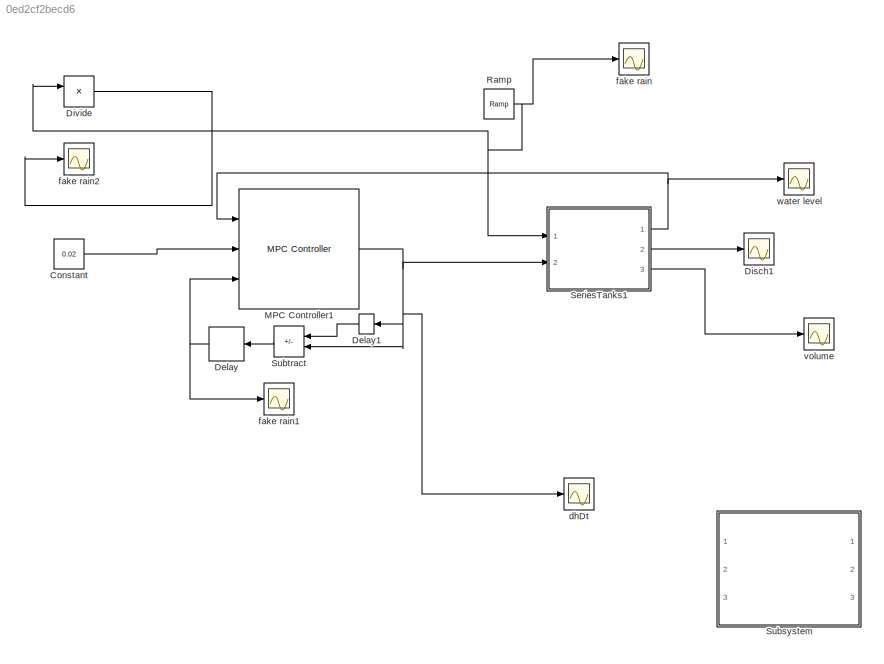
MODEL slx_0ed2cf2becd6
KIND model
CONFIG AbsTol = auto
CONFIG EnableMultiTasking = off
CONFIG FixedStep = auto
CONFIG MaxStep = auto
CONFIG MinStep = auto
CONFIG RelTol = 1e-3
CONFIG SampleTimeConstraint = Unconstrained
CONFIG Solver = VariableStepAuto
CONFIG SolverName = VariableStepAuto
CONFIG StartTime = 0.0
CONFIG StopTime = 100
BLOCK [Constant] Constant
  Value = 0.02
BLOCK [Delay] Delay
  DelayLength = 1
  InitialCondition = 0
  InputPortMap = u0
  Ports = [1, 1]
BLOCK [Delay] Delay1
  DelayLength = 1
  InitialCondition = 0
  InputPortMap = u0
  Ports = [1, 1]
BLOCK [Scope] Disch1
  Floating = off
  NumInputPorts = 1
  Ports = [1]
  ScopeSpecificationString = Simulink.scopes.TimeScopeBlockCfg('CurrentConfiguration', extmgr.ConfigurationSet(extmgr.Configuration('Core','General UI',true),extmgr.Configuration('Core','Source UI',true),extmgr.Configuration('Sources','WiredSimulink',true,'DataLoggingVariableName','ScopeData3'),extmgr.Configuration('Visuals','Time Domain',true,'SerializedDisplays',{struct('MinYLimReal','-22773506094858.67188','MaxYLimReal','2...<+1605ch>
BLOCK [Product] Divide
  Commented = on
  Inputs = */
  Ports = [2, 1]
BLOCK [Reference] MPC Controller1  REF=mpclib/MPC Controller  (lib defined in mdl_ae329e0e0455)
  Ports = [3, 1]
  SCDEnableBlockLinearizationSpecification = on
  SourceBlock = mpclib/MPC Controller
  SourceProductBaseCode = MP
  SourceType = MPC
BLOCK [Reference] Ramp  REF=simulink/Sources/Ramp
  Ports = [0, 1]
  SourceBlock = simulink/Sources/Ramp
  SourceProductBaseCode = SL
  SourceType = Ramp
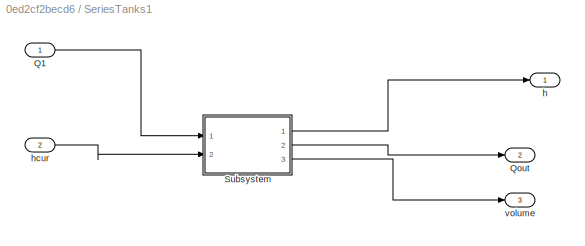
BLOCK [SubSystem] SeriesTanks1
  Ports = [2, 3]
  RequestExecContextInheritance = off
BLOCK [Inport] SeriesTanks1/Q1
BLOCK [Outport] SeriesTanks1/Qout
  Port = 2
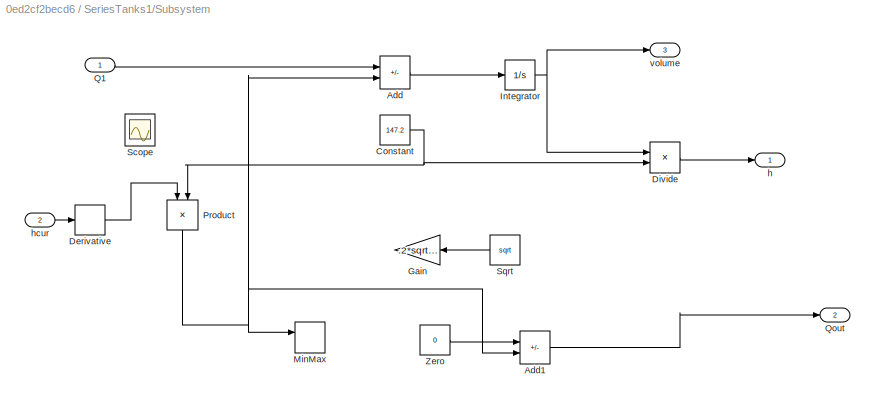
BLOCK [SubSystem] SeriesTanks1/Subsystem
  PermitHierarchicalResolution = None
  Ports = [2, 3]
  RequestExecContextInheritance = off
BLOCK [Sum] SeriesTanks1/Subsystem/Add
  IconShape = rectangular
  Inputs = +-
  Ports = [2, 1]
BLOCK [Sum] SeriesTanks1/Subsystem/Add1
  IconShape = rectangular
  Inputs = +-
  Ports = [2, 1]
BLOCK [Constant] SeriesTanks1/Subsystem/Constant
  Value = 147.2
BLOCK [Derivative] SeriesTanks1/Subsystem/Derivative
BLOCK [Product] SeriesTanks1/Subsystem/Divide
  Inputs = */
  Ports = [2, 1]
BLOCK [Gain] SeriesTanks1/Subsystem/Gain
  Gain = .2*sqrt(2)
BLOCK [Integrator] SeriesTanks1/Subsystem/Integrator
  LimitOutput = on
  LowerSaturationLimit = 0
  Ports = [1, 1]
  UpperSaturationLimit = 100
BLOCK [MinMax] SeriesTanks1/Subsystem/MinMax
  Commented = on
  Function = max
  Inputs = 2
  Ports = [2, 1]
BLOCK [Product] SeriesTanks1/Subsystem/Product
  NameLocation = left
  Ports = [2, 1]
BLOCK [Inport] SeriesTanks1/Subsystem/Q1
BLOCK [Outport] SeriesTanks1/Subsystem/Qout
  OutMax = 100
  OutMin = 0
  Port = 2
BLOCK [Scope] SeriesTanks1/Subsystem/Scope
  Floating = off
  NumInputPorts = 1
  Ports = [1]
  ScopeSpecificationString = Simulink.scopes.TimeScopeBlockCfg('CurrentConfiguration', extmgr.ConfigurationSet(extmgr.Configuration('Core','General UI',true),extmgr.Configuration('Core','Source UI',true),extmgr.Configuration('Sources','WiredSimulink',true,'DataLoggingVariableName','ScopeData3'),extmgr.Configuration('Visuals','Time Domain',true,'SerializedDisplays',{struct('MinYLimReal','-1.00000','MaxYLimReal','1.00000','YLab...<+1432ch>
BLOCK [Sqrt] SeriesTanks1/Subsystem/Sqrt
BLOCK [Constant] SeriesTanks1/Subsystem/Zero
  OutDataTypeStr = Inherit: Inherit via back propagation
  Value = 0
BLOCK [Outport] SeriesTanks1/Subsystem/h
  OutMin = 0
BLOCK [Inport] SeriesTanks1/Subsystem/hcur
  Port = 2
BLOCK [Outport] SeriesTanks1/Subsystem/volume
  OutMin = 0
  Port = 3
BLOCK [Outport] SeriesTanks1/h
BLOCK [Inport] SeriesTanks1/hcur
  Port = 2
BLOCK [Outport] SeriesTanks1/volume
  Port = 3
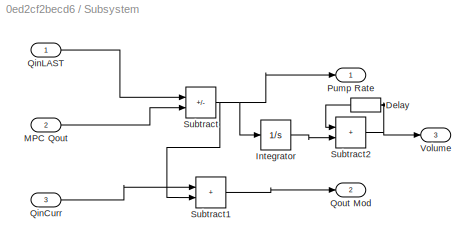
BLOCK [SubSystem] Subsystem
  Commented = on
  PortSchema = {"entries":[{"content":{"sides":[{"content":{"connectorIds":["In1","In2"]},"type":"ConnectorPlacement.EquallySpacedRectSide","uuid":"2e541fee-425f-42c5-8525-f22b933c6585"},{"content":{"connectorIds":["Out1","Out2","Out3"],"side":"RIGHT"},"type":"ConnectorPlacement.EquallySpacedRectSide","uuid":"dcba341a-88c3-4351-8c35-125a68807492"},{"content":{"connectorIds":["In3"],"side":"TOP"},"type":"Connecto...<+267ch>
  Ports = [3, 3]
  RequestExecContextInheritance = off
BLOCK [Delay] Subsystem/Delay
  DelayLength = 1
  InitialCondition = 0
  InputPortMap = u0
  Ports = [1, 1]
BLOCK [Integrator] Subsystem/Integrator
  Ports = [1, 1]
BLOCK [Inport] Subsystem/MPC Qout
  Port = 2
BLOCK [Outport] Subsystem/Pump Rate
  OutMin = 0
BLOCK [Inport] Subsystem/QinCurr
  Port = 3
BLOCK [Inport] Subsystem/QinLAST
BLOCK [Outport] Subsystem/Qout Mod
  OutMin = 0
  Port = 2
BLOCK [Sum] Subsystem/Subtract
  IconShape = rectangular
  Inputs = +-
  Ports = [2, 1]
BLOCK [Sum] Subsystem/Subtract1
  IconShape = rectangular
  Ports = [2, 1]
BLOCK [Sum] Subsystem/Subtract2
  IconShape = rectangular
  Ports = [2, 1]
BLOCK [Outport] Subsystem/Volume
  OutMin = 0
  Port = 3
BLOCK [Sum] Subtract
  IconShape = rectangular
  Inputs = +-
  Ports = [2, 1]
BLOCK [Scope] dhDt
  Floating = off
  NumInputPorts = 1
  Ports = [1]
  ScopeSpecificationString = Simulink.scopes.TimeScopeBlockCfg('CurrentConfiguration', extmgr.ConfigurationSet(extmgr.Configuration('Core','General UI',true),extmgr.Configuration('Core','Source UI',true),extmgr.Configuration('Sources','WiredSimulink',true,'DataLoggingVariableName','ScopeData5'),extmgr.Configuration('Visuals','Time Domain',true,'SerializedDisplays',{struct('MinYLimReal','-0.05107','MaxYLimReal','0.45961','YLab...<+1464ch>
BLOCK [Scope] fake rain
  Floating = off
  NumInputPorts = 1
  Ports = [1]
  ScopeSpecificationString = Simulink.scopes.TimeScopeBlockCfg('CurrentConfiguration', extmgr.ConfigurationSet(extmgr.Configuration('Core','General UI',true),extmgr.Configuration('Core','Source UI',true),extmgr.Configuration('Sources','WiredSimulink',true,'DataLoggingVariableName','ScopeData1'),extmgr.Configuration('Visuals','Time Domain',true,'SerializedDisplays',{struct('MinYLimReal','-2.375','MaxYLimReal','21.375','YLabelR...<+1410ch>
BLOCK [Scope] fake rain1
  Floating = off
  NumInputPorts = 1
  Ports = [1]
  ScopeSpecificationString = Simulink.scopes.TimeScopeBlockCfg('CurrentConfiguration', extmgr.ConfigurationSet(extmgr.Configuration('Core','General UI',true),extmgr.Configuration('Core','Source UI',true),extmgr.Configuration('Sources','WiredSimulink',true,'DataLoggingVariableName','ScopeData4'),extmgr.Configuration('Visuals','Time Domain',true,'SerializedDisplays',{struct('MinYLimReal','-0.23463','MaxYLimReal','0.15834','YLab...<+1392ch>
BLOCK [Scope] fake rain2
  Commented = on
  Floating = off
  NumInputPorts = 1
  Ports = [1]
  ScopeSpecificationString = Simulink.scopes.TimeScopeBlockCfg('CurrentConfiguration', extmgr.ConfigurationSet(extmgr.Configuration('Core','General UI',true),extmgr.Configuration('Core','Source UI',true),extmgr.Configuration('Sources','WiredSimulink',true,'DataLoggingVariableName','ScopeData5'),extmgr.Configuration('Visuals','Time Domain',true,'SerializedDisplays',{struct('MinYLimReal','-0.01613','MaxYLimReal','0.14521','YLab...<+1394ch>
BLOCK [Scope] volume
  Floating = off
  NumInputPorts = 1
  Ports = [1]
  ScopeSpecificationString = Simulink.scopes.TimeScopeBlockCfg('CurrentConfiguration', extmgr.ConfigurationSet(extmgr.Configuration('Core','General UI',true),extmgr.Configuration('Core','Source UI',true),extmgr.Configuration('Sources','WiredSimulink',true,'DataLoggingVariableName','ScopeData2'),extmgr.Configuration('Visuals','Time Domain',true,'SerializedDisplays',{struct('MinYLimReal','-12.5','MaxYLimReal','112.5','YLabelRea...<+1448ch>
BLOCK [Scope] water level
  Floating = off
  NumInputPorts = 1
  Ports = [1]
  ScopeSpecificationString = Simulink.scopes.TimeScopeBlockCfg('CurrentConfiguration', extmgr.ConfigurationSet(extmgr.Configuration('Core','General UI',true),extmgr.Configuration('Core','Source UI',true),extmgr.Configuration('Sources','WiredSimulink',true,'DataLoggingVariableName','ScopeData4'),extmgr.Configuration('Visuals','Time Domain',true,'SerializedDisplays',{struct('MinYLimReal','-0.08492','MaxYLimReal','0.76427','YLab...<+1461ch>
LINE Constant:1 -> MPC Controller1:2
LINE Delay1:1 -> Subtract:1
NET Delay:1 -> MPC Controller1:3, fake rain1:1
LINE Divide:1 -> fake rain2:1
NET MPC Controller1:1 -> Delay1:1, SeriesTanks1:2, Subtract:2, dhDt:1
NET Ramp:1 -> Divide:1, SeriesTanks1:1, fake rain:1
LINE SeriesTanks1/Q1:1 -> SeriesTanks1/Subsystem:1
LINE SeriesTanks1/Subsystem/Add1:1 -> SeriesTanks1/Subsystem/Qout:1
LINE SeriesTanks1/Subsystem/Add:1 -> SeriesTanks1/Subsystem/Integrator:1
NET SeriesTanks1/Subsystem/Constant:1 -> SeriesTanks1/Subsystem/Divide:2, SeriesTanks1/Subsystem/Product:2
LINE SeriesTanks1/Subsystem/Derivative:1 -> SeriesTanks1/Subsystem/Product:1
LINE SeriesTanks1/Subsystem/Divide:1 -> SeriesTanks1/Subsystem/h:1
NET SeriesTanks1/Subsystem/Integrator:1 -> SeriesTanks1/Subsystem/Divide:1, SeriesTanks1/Subsystem/volume:1
NET SeriesTanks1/Subsystem/Product:1 -> SeriesTanks1/Subsystem/Add1:2, SeriesTanks1/Subsystem/Add:2, SeriesTanks1/Subsystem/MinMax:1
LINE SeriesTanks1/Subsystem/Q1:1 -> SeriesTanks1/Subsystem/Add:1
LINE SeriesTanks1/Subsystem/Sqrt:1 -> SeriesTanks1/Subsystem/Gain:1
LINE SeriesTanks1/Subsystem/Zero:1 -> SeriesTanks1/Subsystem/Add1:1
LINE SeriesTanks1/Subsystem/hcur:1 -> SeriesTanks1/Subsystem/Derivative:1
LINE SeriesTanks1/Subsystem:1 -> SeriesTanks1/h:1
LINE SeriesTanks1/Subsystem:2 -> SeriesTanks1/Qout:1
LINE SeriesTanks1/Subsystem:3 -> SeriesTanks1/volume:1
LINE SeriesTanks1/hcur:1 -> SeriesTanks1/Subsystem:2
NET SeriesTanks1:1 -> MPC Controller1:1, water level:1
LINE SeriesTanks1:2 -> Disch1:1
LINE SeriesTanks1:3 -> volume:1
LINE Subsystem/Delay:1 -> Subsystem/Subtract2:1
LINE Subsystem/Integrator:1 -> Subsystem/Subtract2:2
LINE Subsystem/MPC Qout:1 -> Subsystem/Subtract:2
LINE Subsystem/QinCurr:1 -> Subsystem/Subtract1:1
LINE Subsystem/QinLAST:1 -> Subsystem/Subtract:1
LINE Subsystem/Subtract1:1 -> Subsystem/Qout Mod:1
NET Subsystem/Subtract2:1 -> Subsystem/Delay:1, Subsystem/Volume:1
NET Subsystem/Subtract:1 -> Subsystem/Integrator:1, Subsystem/Pump Rate:1, Subsystem/Subtract1:2
LINE Subtract:1 -> Delay:1
note: NET lines group one-source signal fan-out (src -> all destinations, sorted); 1:1 wires keep LINE
